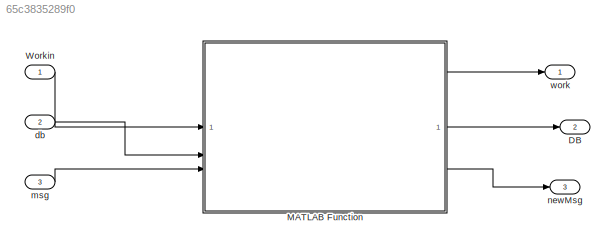
MODEL slx_65c3835289f0
KIND model
CONFIG AbsTol = auto
CONFIG EnableMultiTasking = off
CONFIG FixedStep = auto
CONFIG MaxStep = auto
CONFIG MinStep = auto
CONFIG RelTol = 1e-3
CONFIG SampleTimeConstraint = Unconstrained
CONFIG SolverName = VariableStepAuto
CONFIG StartTime = 0.0
CONFIG StopTime = 10.0
BLOCK [Outport] DB
  Port = 2
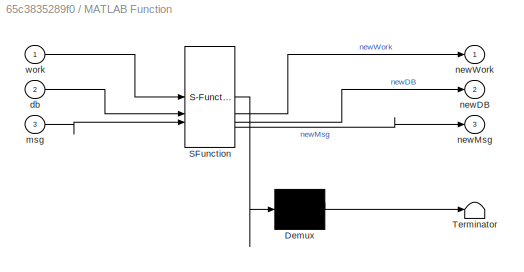
BLOCK [SubSystem] MATLAB Function
  ErrorFcn = Stateflow.Translate.translate
  PermitHierarchicalResolution = ExplicitOnly
  SFBlockType = MATLAB Function
  TreatAsAtomicUnit = on
BLOCK [Demux] MATLAB Function/ Demux 
  Outputs = 1
BLOCK [S-Function] MATLAB Function/ SFunction 
  EnableBusSupport = off
  FunctionName = sf_sfun
  PortCounts = [3 4]
  SFcnIsStateOwnerBlock = off
  SFunctionDeploymentMode = off
  Tag = Stateflow S-Function 2
BLOCK [Terminator] MATLAB Function/ Terminator 
BLOCK [Inport] MATLAB Function/db
  Port = 2
BLOCK [Inport] MATLAB Function/msg
  Port = 3
BLOCK [Outport] MATLAB Function/newDB
  Port = 2
BLOCK [Outport] MATLAB Function/newMsg
  Port = 3
BLOCK [Outport] MATLAB Function/newWork
BLOCK [Inport] MATLAB Function/work
BLOCK [Inport] Workin
BLOCK [Inport] db
  Port = 2
BLOCK [Inport] msg
  Port = 3
BLOCK [Outport] newMsg
  Port = 3
BLOCK [Outport] work
LINE MATLAB Function:1 -> work:1
LINE MATLAB Function:2 -> DB:1
LINE MATLAB Function:3 -> newMsg:1
LINE Workin:1 -> MATLAB Function:1
LINE db:1 -> MATLAB Function:2
LINE msg:1 -> MATLAB Function:3
CHART MATLAB Function states=1 transitions=1
  STATE_LABEL 'eML_blk_kernel()'
  STATE_LABEL 'SCRIPT:\nfunction [newWork, newDB, newMsg] = writeFunction(work, db, msg)\n    workNY = 3;\n    dbNY = 1;\n    msgNY = 2;\n    \n    workLA = 4;\n    dbLA = 1;\n    msgLA = 2;\n\n    newWork = work + workNY + workLA;\n    newDB = db + dbNY + dbLA;\n    newMsg = msg + msgNY + msgLA;\nend\n'
CHART  states=0 transitions=0
